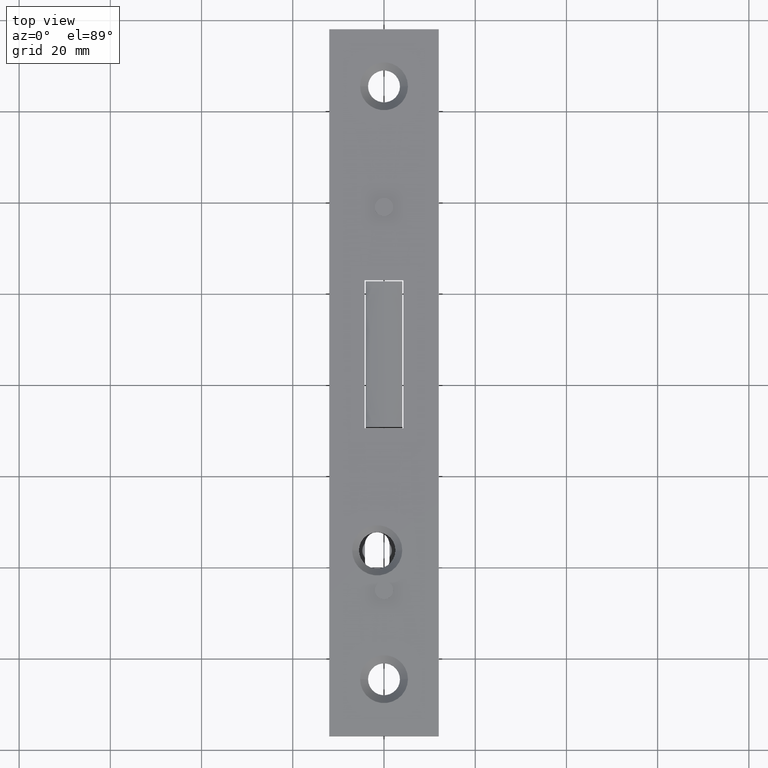
[diagram: clean part render]
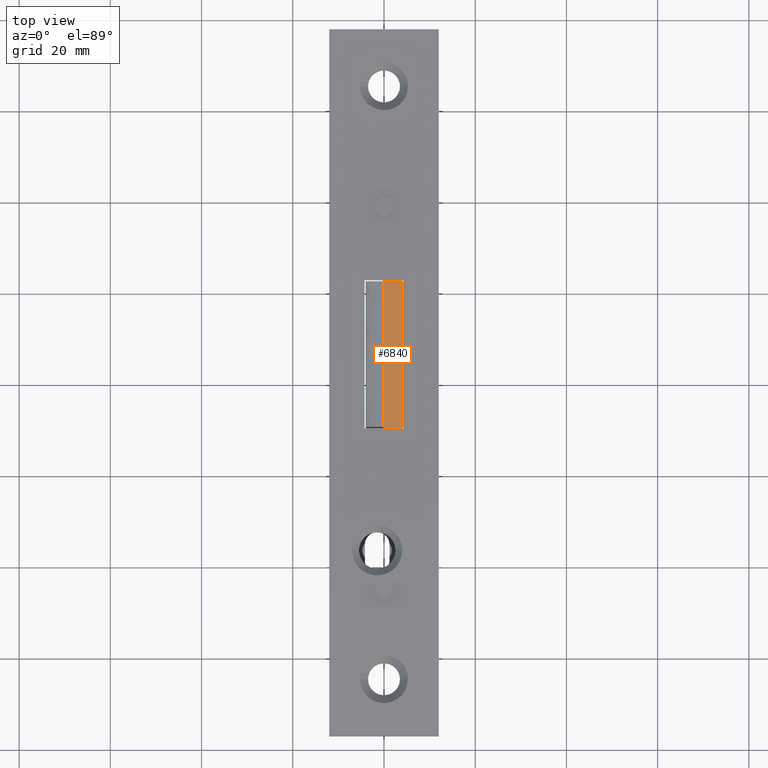
[diagram: same view with one face highlighted and labeled with its STEP entity id]
A machine part, top view. The second image highlights one B-rep face of the part: STEP entity #6840.
In plain terms, the highlighted face is a freeform B-spline surface patch.
Its self-contained STEP definition (entity closure, byte-faithful):
#37 = CARTESIAN_POINT ( 'NONE',  ( 2.997515683353411564, 22.24999999999999645, 2.331105316511586256 ) ) ;
#168 = CARTESIAN_POINT ( 'NONE',  ( 3.999999999999989786, 22.25000000000000000, 2.000000000000000444 ) ) ;
#183 = CARTESIAN_POINT ( 'NONE',  ( 2.127858319362467832, -9.750000000000001776, 2.423410820697605494 ) ) ;
#218 = CARTESIAN_POINT ( 'NONE',  ( -1.040834085586084257E-14, -9.750000000000001776, 2.500000000000000444 ) ) ;
#228 = CARTESIAN_POINT ( 'NONE',  ( 3.055638055408424147, 22.24999999999999645, 2.322663528806157451 ) ) ;
#845 = CARTESIAN_POINT ( 'NONE',  ( 3.999999999999989786, 11.58333333333333037, 2.000000000000000444 ) ) ;
#1220 = CARTESIAN_POINT ( 'NONE',  ( 3.999999999999989786, -9.750000000000001776, 2.000000000000000444 ) ) ;
#1285 = B_SPLINE_CURVE_WITH_KNOTS ( 'NONE', 3,
 ( #218, #14276, #6016, #8919 ),
 .UNSPECIFIED., .F., .F.,
 ( 4, 4 ),
 ( 0.000000000000000000, 1.000000000000000000 ),
 .UNSPECIFIED. ) ;
#1310 = CARTESIAN_POINT ( 'NONE',  ( 2.034662938349188099, 22.24999999999999645, 2.430482526923249509 ) ) ;
#1450 = CARTESIAN_POINT ( 'NONE',  ( 3.436675990342434428, 22.25000000000000000, 2.256162694059198337 ) ) ;
#2000 = CARTESIAN_POINT ( 'NONE',  ( 3.999999999999989786, 12.11666666666666181, 2.000000000000000444 ) ) ;
#2519 = CARTESIAN_POINT ( 'NONE',  ( 3.566327800000035797, -9.750000000000001776, 2.226432043467887922 ) ) ;
#2572 = CARTESIAN_POINT ( 'NONE',  ( 3.859967687762192234, -9.750000000000003553, 2.131428263836021131 ) ) ;
#2633 = CARTESIAN_POINT ( 'NONE',  ( 3.144666971411520073, -9.750000000000003553, 2.309071630294110555 ) ) ;
#2698 = CARTESIAN_POINT ( 'NONE',  ( 3.378479427268340718, -9.750000000000003553, 2.268879737863595203 ) ) ;
#2751 = CARTESIAN_POINT ( 'NONE',  ( 2.238243983596539088, 22.25000000000000000, 2.415356039696149093 ) ) ;
#2771 = CARTESIAN_POINT ( 'NONE',  ( 3.644236043277590653, -9.750000000000003553, 2.206328908921018961 ) ) ;
#2866 = CARTESIAN_POINT ( 'NONE',  ( 3.805268025144298516, 22.25000000000000355, 2.154113633260123173 ) ) ;
#3048 = CARTESIAN_POINT ( 'NONE',  ( 2.931938791052151494, 22.24999999999999645, 2.340261369920891177 ) ) ;
#3410 = CARTESIAN_POINT ( 'NONE',  ( 3.999999999999989786, 0.3833333333333327486, 2.000000000000000444 ) ) ;
#3639 = CARTESIAN_POINT ( 'NONE',  ( -1.040834085586084257E-14, 0.3833333333333327486, 2.500000000000000444 ) ) ;
#3871 = EDGE_CURVE ( 'NONE', #7304, #5216, #4334, .T. ) ;
#4037 = CARTESIAN_POINT ( 'NONE',  ( 3.064886521503688677, -9.750000000000001776, 2.321289112144451661 ) ) ;
#4138 = CARTESIAN_POINT ( 'NONE',  ( 1.975407552365179953, 22.25000000000000000, 2.434794408181293779 ) ) ;
#4160 = CARTESIAN_POINT ( 'NONE',  ( 2.210700879780552963, -9.750000000000000000, 2.416812451018202079 ) ) ;
#4231 = CARTESIAN_POINT ( 'NONE',  ( 2.085934564569153160, -9.750000000000003553, 2.426636975059301093 ) ) ;
#4334 = B_SPLINE_CURVE_WITH_KNOTS ( 'NONE', 3,
 ( #1220, #9732, #5526, #8376, #2572, #18013, #6892, #15222, #16651, #11050, #5338, #2771, #8311, #11119, #12501, #2519, #12393, #2698, #6822, #2633, #18137, #16598, #13858, #4037, #13926, #9797, #12564, #4160, #183, #4231, #4361, #15657, #7078, #5924, #12639, #15595 ),
 .UNSPECIFIED., .F., .F.,
 ( 4, 1, 1, 1, 1, 2, 2, 1, 1, 1, 2, 2, 1, 1, 1, 1, 2, 2, 1, 1, 1, 1, 1, 2, 2, 4 ),
 ( 0.000000000000000000, 0.03125000000000646011, 0.04687500000000932587, 0.05468750000001070671, 0.05859375000001135203, 0.06054687500001157408, 0.06250000000001179612, 0.09375000000001512679, 0.1093750000000166395, 0.1171875000000172640, 0.1210937500000174305, 0.1250000000000175970, 0.1875000000000177913, 0.2187500000000177636, 0.2343750000000177636, 0.2421875000000179023, 0.2460937500000178468, 0.2500000000000177636, 0.3750000000000144329, 0.4375000000000128231, 0.4687500000000120459, 0.4843750000000117684, 0.4921875000000116573, 0.4960937500000114353, 0.5000000000000112133, 1.000000000000000000 ),
 .UNSPECIFIED. ) ;
#4361 = CARTESIAN_POINT ( 'NONE',  ( 2.067859567961101153, -9.750000000000003553, 2.428003963254740771 ) ) ;
#4386 = CARTESIAN_POINT ( 'NONE',  ( -1.040834085586084257E-14, -9.750000000000001776, 2.500000000000000444 ) ) ;
#4538 = CARTESIAN_POINT ( 'NONE',  ( 3.680167809476887708, 22.25000000000000000, 2.196718273185100490 ) ) ;
#4579 = CARTESIAN_POINT ( 'NONE',  ( 3.999999999999989786, 23.84999999999999787, 2.500000000000000444 ) ) ;
#4817 = CARTESIAN_POINT ( 'NONE',  ( 3.999999999999989786, 12.11666666666667069, 2.500000000000000444 ) ) ;
#5066 = CARTESIAN_POINT ( 'NONE',  ( 3.999999999999989786, 22.25000000000000000, 2.000000000000000444 ) ) ;
#5216 = VERTEX_POINT ( 'NONE', #4386 ) ;
#5338 = CARTESIAN_POINT ( 'NONE',  ( 3.719332293668366596, -9.750000000000001776, 2.184856670195607364 ) ) ;
#5506 = CARTESIAN_POINT ( 'NONE',  ( 1.905951261702920618, 22.25000000000000355, 2.439676538236807524 ) ) ;
#5526 = CARTESIAN_POINT ( 'NONE',  ( 3.975908419399936999, -9.750000000000001776, 2.064930943048528089 ) ) ;
#5681 =( BOUNDED_SURFACE ( )  B_SPLINE_SURFACE ( 2, 3, ( 
 ( #14585, #2000, #3410, #13225 ),
 ( #4579, #4817, #14648, #6251 ),
 ( #7676, #14408, #3639, #17546 ) ),
 .UNSPECIFIED., .F., .F., .T. ) 
 B_SPLINE_SURFACE_WITH_KNOTS ( ( 3, 3 ),
 ( 4, 4 ),
 ( 0.000000000000000000, 1.000000000000000000 ),
 ( -0.02384999999999999967, 0.01135000000000000245 ),
 .UNSPECIFIED. ) 
 GEOMETRIC_REPRESENTATION_ITEM ( )  RATIONAL_B_SPLINE_SURFACE ( (
 ( 1.000000000000000000, 1.000000000000000000, 1.000000000000000000, 1.000000000000000000),
 ( 0.7071067811865475727, 0.7071067811865475727, 0.7071067811865475727, 0.7071067811865475727),
 ( 1.000000000000000000, 1.000000000000000000, 1.000000000000000000, 1.000000000000000000) ) ) 
 REPRESENTATION_ITEM ( '' )  SURFACE ( )  );
#5712 = CARTESIAN_POINT ( 'NONE',  ( 3.052673311420010194, 22.25000000000000355, 2.323100658700848253 ) ) ;
#5846 = CARTESIAN_POINT ( 'NONE',  ( 3.779538273247615265, 22.25000000000000000, 2.163754766783080097 ) ) ;
#5924 = CARTESIAN_POINT ( 'NONE',  ( 1.414097314730113908, -9.750000000000000000, 2.476604814145219269 ) ) ;
#5967 = CARTESIAN_POINT ( 'NONE',  ( 3.794603936044564030, 22.25000000000000355, 2.158172620473117753 ) ) ;
#6016 = CARTESIAN_POINT ( 'NONE',  ( -1.474514954580286030E-14, 11.58333333333332860, 2.500000000000000444 ) ) ;
#6026 = EDGE_CURVE ( 'NONE', #5216, #12795, #1285, .T. ) ;
#6231 = ORIENTED_EDGE ( 'NONE', *, *, #3871, .F. ) ;
#6251 = CARTESIAN_POINT ( 'NONE',  ( 3.999999999999989786, -11.35000000000000675, 2.500000000000000444 ) ) ;
#6302 = CARTESIAN_POINT ( 'NONE',  ( 3.999999999999989786, 22.25000000000000000, 2.000000000000000444 ) ) ;
#6512 = CARTESIAN_POINT ( 'NONE',  ( 3.999999999999989786, -9.750000000000001776, 2.000000000000000444 ) ) ;
#6822 = CARTESIAN_POINT ( 'NONE',  ( 3.225790708406793161, -9.750000000000000000, 2.295927732958057632 ) ) ;
#6840 = ADVANCED_FACE ( 'NONE', ( #7621 ), #5681, .T. ) ;
#6892 = CARTESIAN_POINT ( 'NONE',  ( 3.823014716477216801, -9.750000000000001776, 2.147087685976311722 ) ) ;
#6944 = CARTESIAN_POINT ( 'NONE',  ( 2.010004234184927796, 22.25000000000000000, 2.432293316964330820 ) ) ;
#7078 = CARTESIAN_POINT ( 'NONE',  ( 2.048594408844573778, -9.750000000000001776, 2.429448892656679071 ) ) ;
#7197 = CARTESIAN_POINT ( 'NONE',  ( 2.796816669905977104, 22.25000000000000000, 2.357982222329069177 ) ) ;
#7304 = VERTEX_POINT ( 'NONE', #10401 ) ;
#7621 = FACE_OUTER_BOUND ( 'NONE', #7968, .T. ) ;
#7676 = CARTESIAN_POINT ( 'NONE',  ( -1.040834085586084257E-14, 23.85000000000000142, 2.500000000000000444 ) ) ;
#7968 = EDGE_LOOP ( 'NONE', ( #17640, #16399, #17695, #6231 ) ) ;
#8095 = CARTESIAN_POINT ( 'NONE',  ( 3.999999999999989786, 0.9166666666666610785, 2.000000000000000444 ) ) ;
#8295 = CARTESIAN_POINT ( 'NONE',  ( 1.765986972287356238, 22.25000000000000355, 2.448960588834175223 ) ) ;
#8311 = CARTESIAN_POINT ( 'NONE',  ( 3.604015212690310666, -9.750000000000003553, 2.216947801669927109 ) ) ;
#8376 = CARTESIAN_POINT ( 'NONE',  ( 3.905641309316454812, -9.750000000000000000, 2.109392735931155283 ) ) ;
#8532 = B_SPLINE_CURVE_WITH_KNOTS ( 'NONE', 3,
 ( #12483, #13905, #9603, #18174, #8295, #5506, #4138, #6944, #12622, #1310, #11157, #2751, #13963, #7197, #3048, #37, #17085, #12927, #5712, #228, #9898, #14169, #1450, #14289, #15710, #11286, #11353, #10029, #14358, #4538, #16961, #5846, #5967, #17032, #8616, #2866, #8752, #15763, #168 ),
 .UNSPECIFIED., .F., .F.,
 ( 4, 1, 1, 1, 1, 1, 1, 2, 2, 1, 1, 1, 1, 1, 2, 2, 1, 1, 1, 1, 2, 2, 1, 1, 1, 1, 2, 2, 4 ),
 ( 0.000000000000000000, 0.2500000000000068834, 0.3750000000000103251, 0.4375000000000121014, 0.4687500000000129896, 0.4843750000000134337, 0.4921875000000138778, 0.4960937500000140998, 0.5000000000000143219, 0.6250000000000138778, 0.6875000000000136557, 0.7187500000000134337, 0.7343750000000131006, 0.7421875000000131006, 0.7460937500000129896, 0.7500000000000128786, 0.8125000000000113243, 0.8437500000000106581, 0.8593750000000102141, 0.8671875000000099920, 0.8710937500000098810, 0.8750000000000097700, 0.9062500000000097700, 0.9218750000000098810, 0.9296875000000097700, 0.9335937500000095479, 0.9355468750000091038, 0.9375000000000086597, 1.000000000000000000 ),
 .UNSPECIFIED. ) ;
#8616 = CARTESIAN_POINT ( 'NONE',  ( 3.805105599472974109, 22.25000000000001421, 2.154170068151744832 ) ) ;
#8752 = CARTESIAN_POINT ( 'NONE',  ( 3.936414049026701889, 22.25000000000000000, 2.103017513626455059 ) ) ;
#8919 = CARTESIAN_POINT ( 'NONE',  ( -1.040834085586084257E-14, 22.25000000000000000, 2.500000000000000444 ) ) ;
#9603 = CARTESIAN_POINT ( 'NONE',  ( 0.8967534092446166616, 22.25000000000000000, 2.491219026035987660 ) ) ;
#9732 = CARTESIAN_POINT ( 'NONE',  ( 3.999999999999988010, -9.750000000000001776, 2.026150999881308312 ) ) ;
#9797 = CARTESIAN_POINT ( 'NONE',  ( 2.679617665569866247, -9.750000000000003553, 2.373132526173472368 ) ) ;
#9898 = CARTESIAN_POINT ( 'NONE',  ( 3.159877659180585496, 22.25000000000000355, 2.307170570181165559 ) ) ;
#10029 = CARTESIAN_POINT ( 'NONE',  ( 3.558447725039575182, 22.24999999999999645, 2.228363752692282596 ) ) ;
#10248 = VERTEX_POINT ( 'NONE', #6302 ) ;
#10401 = CARTESIAN_POINT ( 'NONE',  ( 3.999999999999989786, -9.750000000000001776, 2.000000000000000444 ) ) ;
#10740 = EDGE_CURVE ( 'NONE', #12795, #10248, #8532, .T. ) ;
#11050 = CARTESIAN_POINT ( 'NONE',  ( 3.774536946945395766, -9.749999999999998224, 2.166049974326523575 ) ) ;
#11119 = CARTESIAN_POINT ( 'NONE',  ( 3.586204991283212795, -9.750000000000001776, 2.221473635716502582 ) ) ;
#11157 = CARTESIAN_POINT ( 'NONE',  ( 2.038459188978354319, 22.24999999999999645, 2.430202088556387086 ) ) ;
#11286 = CARTESIAN_POINT ( 'NONE',  ( 3.547014129790570625, 22.25000000000000711, 2.231122433008336792 ) ) ;
#11353 = CARTESIAN_POINT ( 'NONE',  ( 3.555810541129467595, 22.25000000000000000, 2.229001468318289270 ) ) ;
#12393 = CARTESIAN_POINT ( 'NONE',  ( 3.492969034642797954, -9.750000000000001776, 2.244392541344298220 ) ) ;
#12483 = CARTESIAN_POINT ( 'NONE',  ( -1.040834085586084257E-14, 22.25000000000000000, 2.500000000000000444 ) ) ;
#12501 = CARTESIAN_POINT ( 'NONE',  ( 3.574204238659818955, -9.750000000000003553, 2.224485276194514860 ) ) ;
#12564 = CARTESIAN_POINT ( 'NONE',  ( 2.372366203942555707, -9.750000000000003553, 2.403031467835352597 ) ) ;
#12622 = CARTESIAN_POINT ( 'NONE',  ( 2.024803212783809148, 22.24999999999999645, 2.431208557973659978 ) ) ;
#12639 = CARTESIAN_POINT ( 'NONE',  ( 0.7328720391568874781, -9.749999999999998224, 2.499999999999999556 ) ) ;
#12795 = VERTEX_POINT ( 'NONE', #13019 ) ;
#12927 = CARTESIAN_POINT ( 'NONE',  ( 3.043541394456953153, 22.24999999999999645, 2.324443860045655619 ) ) ;
#13019 = CARTESIAN_POINT ( 'NONE',  ( -1.040834085586084257E-14, 22.25000000000000000, 2.500000000000000444 ) ) ;
#13225 = CARTESIAN_POINT ( 'NONE',  ( 3.999999999999989786, -11.35000000000000675, 2.000000000000000444 ) ) ;
#13858 = CARTESIAN_POINT ( 'NONE',  ( 3.072600407539135325, -9.750000000000000000, 2.320136465398852099 ) ) ;
#13905 = CARTESIAN_POINT ( 'NONE',  ( 0.3663938571637934127, 22.25000000000000711, 2.500000000000000888 ) ) ;
#13926 = CARTESIAN_POINT ( 'NONE',  ( 2.915411741198949525, -9.750000000000000000, 2.343498618526981936 ) ) ;
#13963 = CARTESIAN_POINT ( 'NONE',  ( 2.510699081439006886, 22.25000000000000000, 2.391058909503702701 ) ) ;
#14169 = CARTESIAN_POINT ( 'NONE',  ( 3.296302715323496724, 22.25000000000000000, 2.284374502752032132 ) ) ;
#14276 = CARTESIAN_POINT ( 'NONE',  ( -1.474514954580286030E-14, 0.9166666666666696273, 2.500000000000000444 ) ) ;
#14289 = CARTESIAN_POINT ( 'NONE',  ( 3.502165305231621506, 22.25000000000000355, 2.241652690539736703 ) ) ;
#14358 = CARTESIAN_POINT ( 'NONE',  ( 3.613125845048998031, 22.25000000000000000, 2.214949566605955766 ) ) ;
#14408 = CARTESIAN_POINT ( 'NONE',  ( -1.040834085586084257E-14, 12.11666666666666181, 2.500000000000000444 ) ) ;
#14446 = B_SPLINE_CURVE_WITH_KNOTS ( 'NONE', 3,
 ( #5066, #845, #8095, #6512 ),
 .UNSPECIFIED., .F., .F.,
 ( 4, 4 ),
 ( 0.000000000000000000, 1.000000000000000000 ),
 .UNSPECIFIED. ) ;
#14585 = CARTESIAN_POINT ( 'NONE',  ( 3.999999999999989786, 23.85000000000000142, 2.000000000000000444 ) ) ;
#14648 = CARTESIAN_POINT ( 'NONE',  ( 3.999999999999989786, 0.3833333333333240889, 2.500000000000000444 ) ) ;
#15222 = CARTESIAN_POINT ( 'NONE',  ( 3.815235143575116616, -9.750000000000003553, 2.150212360375048259 ) ) ;
#15595 = CARTESIAN_POINT ( 'NONE',  ( -1.040834085586084257E-14, -9.750000000000001776, 2.500000000000000444 ) ) ;
#15657 = CARTESIAN_POINT ( 'NONE',  ( 2.055785642861246210, -9.750000000000007105, 2.428911811076558180 ) ) ;
#15710 = CARTESIAN_POINT ( 'NONE',  ( 3.533735632021146600, 22.25000000000000355, 2.234296663986745646 ) ) ;
#15763 = CARTESIAN_POINT ( 'NONE',  ( 3.999999999999988898, 22.25000000000000000, 2.052162424960289666 ) ) ;
#16399 = ORIENTED_EDGE ( 'NONE', *, *, #10740, .F. ) ;
#16598 = CARTESIAN_POINT ( 'NONE',  ( 3.084758486343760264, -9.750000000000005329, 2.318304015804557139 ) ) ;
#16651 = CARTESIAN_POINT ( 'NONE',  ( 3.809313005715465827, -9.750000000000001776, 2.152538769282632547 ) ) ;
#16961 = CARTESIAN_POINT ( 'NONE',  ( 3.748124592369570518, 22.25000000000000000, 2.174843434909042639 ) ) ;
#17032 = CARTESIAN_POINT ( 'NONE',  ( 3.800923253462810791, 22.25000000000000000, 2.155772169430206997 ) ) ;
#17085 = CARTESIAN_POINT ( 'NONE',  ( 3.029808087436084652, 22.24999999999999645, 2.326453383005630648 ) ) ;
#17546 = CARTESIAN_POINT ( 'NONE',  ( -1.040834085586084257E-14, -11.35000000000000675, 2.500000000000000444 ) ) ;
#17640 = ORIENTED_EDGE ( 'NONE', *, *, #18049, .F. ) ;
#17695 = ORIENTED_EDGE ( 'NONE', *, *, #6026, .F. ) ;
#18013 = CARTESIAN_POINT ( 'NONE',  ( 3.834495860356926134, -9.750000000000000000, 2.142397185654341119 ) ) ;
#18049 = EDGE_CURVE ( 'NONE', #10248, #7304, #14446, .T. ) ;
#18137 = CARTESIAN_POINT ( 'NONE',  ( 3.102910258522755704, -9.750000000000003553, 2.315548553909341667 ) ) ;
#18174 = CARTESIAN_POINT ( 'NONE',  ( 1.481851561092033531, 22.25000000000000355, 2.465607851974283449 ) ) ;